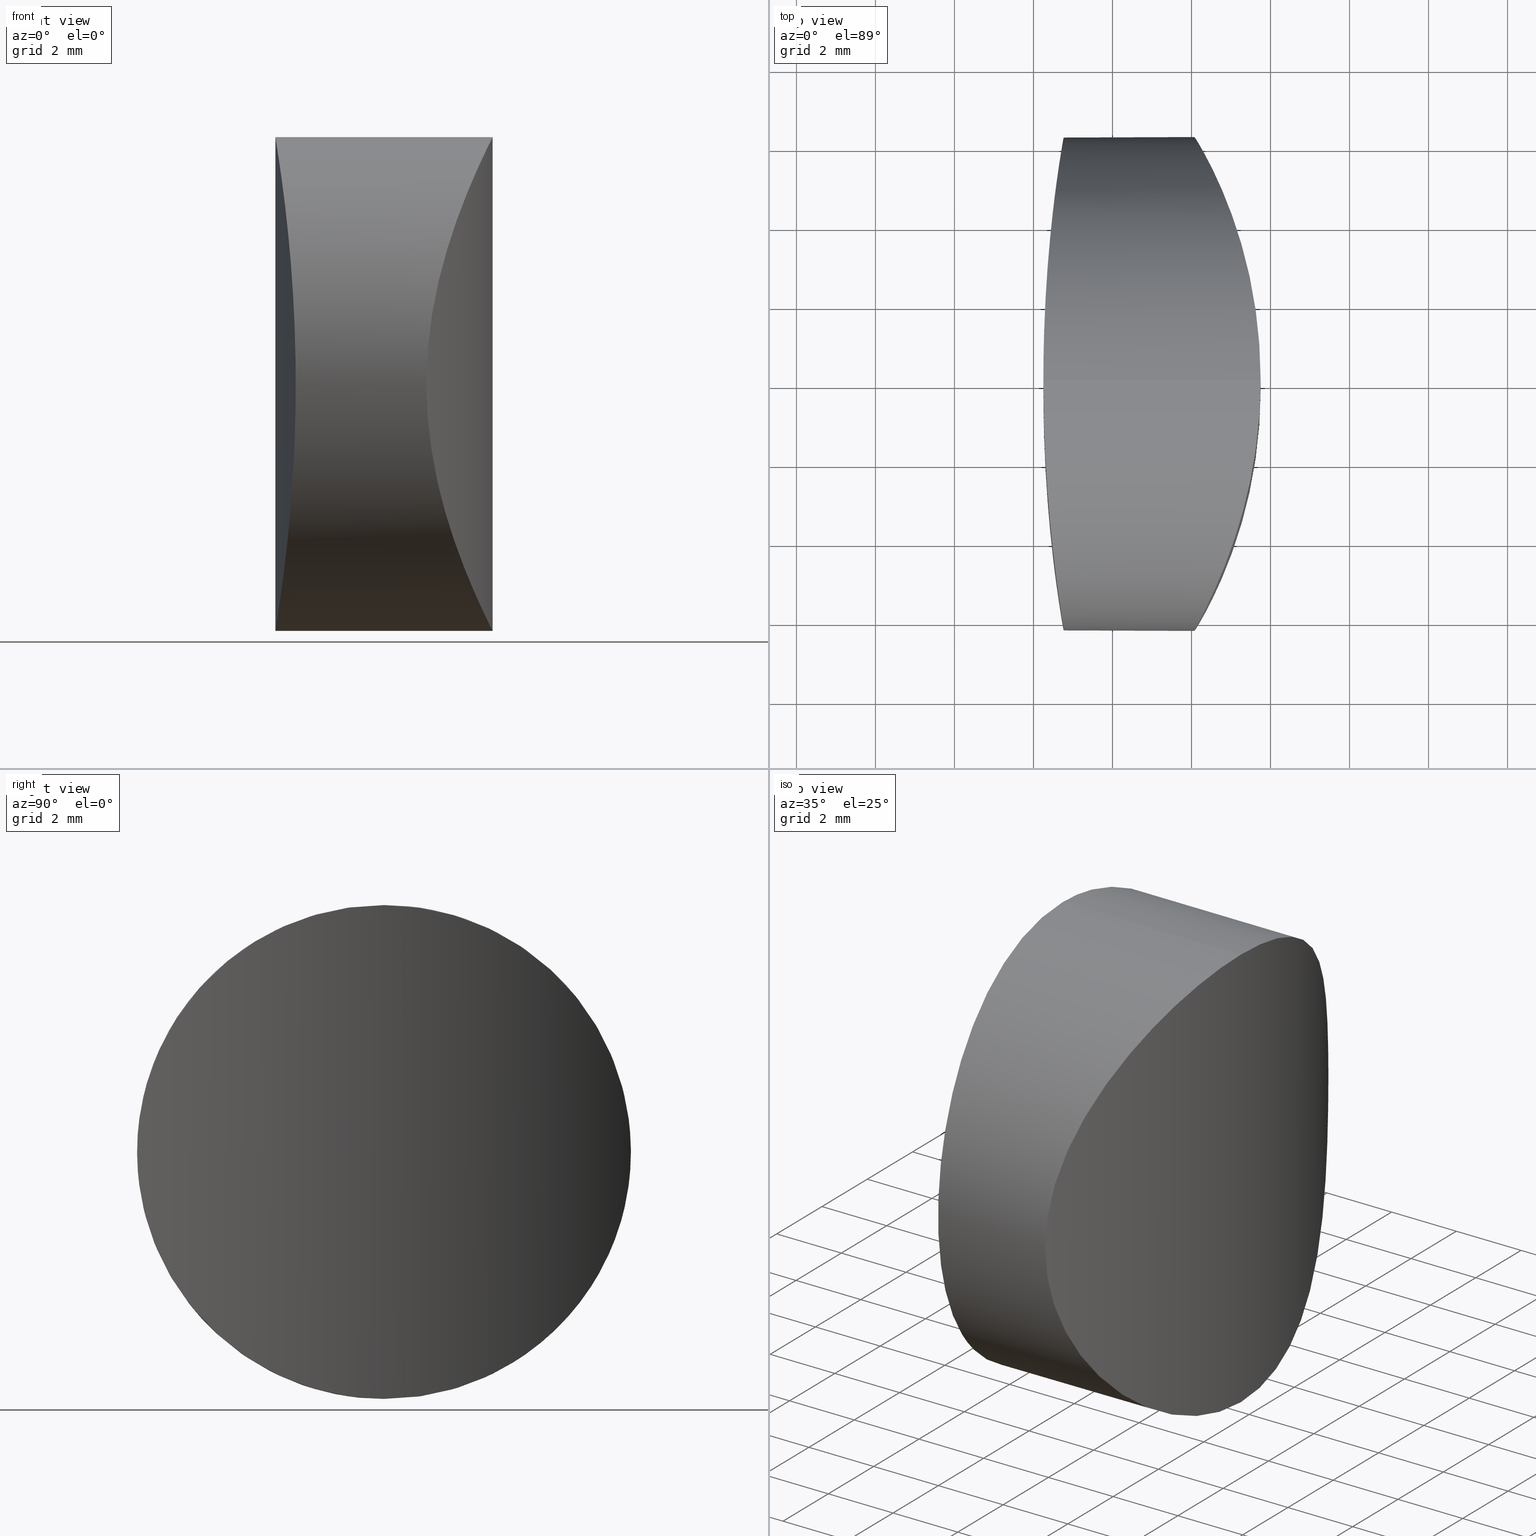
[diagram: canonical four-view strip — front | top / right | iso, engineering-drawing reading convention]
A machine part, canonical four-view strip (front | top / right | iso — engineering-drawing reading convention). The complete STEP part file that produces these views, byte-faithful:
ISO-10303-21;
HEADER;
FILE_DESCRIPTION (( 'STEP AP203' ),
    '1' );
FILE_NAME ('159002.STEP',
    '2024-12-10T00:58:28',
    ( '' ),
    ( '' ),
    'SwSTEP 2.0',
    'SolidWorks 2020',
    '' );
FILE_SCHEMA (( 'CONFIG_CONTROL_DESIGN' ));
ENDSEC;

DATA;
#1 = PRODUCT ( '159002', '159002', '', ( #203 ) ) ;
#2 = CARTESIAN_POINT ( 'NONE',  ( -1.621565708852395371, -3.130939934637392508, 0.8369232792497582896 ) ) ;
#3 = CARTESIAN_POINT ( 'NONE',  ( -1.286459522562452218, -5.927213797019759589, 8.273865896920996832 ) ) ;
#4 = APPROVAL_STATUS ( 'not_yet_approved' ) ;
#5 = CARTESIAN_POINT ( 'NONE',  ( 2.300235299533569311, -5.841329982157808409, 4.017846853050256684 ) ) ;
#6 = CARTESIAN_POINT ( 'NONE',  ( -6.250000000000000000, -4.846596132548555190E-16, -8.673617379884035472E-16 ) ) ;
#7 = CARTESIAN_POINT ( 'NONE',  ( -1.268149588925744808, 6.040567720672501473, 7.867454215538908890 ) ) ;
#8 = AXIS2_PLACEMENT_3D ( 'NONE', #328, #30, #9 ) ;
#9 = DIRECTION ( 'NONE',  ( 0.000000000000000000, 0.000000000000000000, -1.000000000000000000 ) ) ;
#10 = CARTESIAN_POINT ( 'NONE',  ( -1.363617983474595619, 5.413179074090411547, 3.119237713539467993 ) ) ;
#11 = CARTESIAN_POINT ( 'NONE',  ( -1.724080568679461356, 1.419281361369313821, 0.1598727062641647212 ) ) ;
#12 = CARTESIAN_POINT ( 'NONE',  ( -1.526557792428184124, 4.130406150187405423, 1.541745607037889876 ) ) ;
#13 = CARTESIAN_POINT ( 'NONE',  ( -1.749999999999991340, 0.4134255789196237818, -1.156482317317870147E-15 ) ) ;
#14 = CARTESIAN_POINT ( 'NONE',  ( -1.662534855218846586, 2.587004763341000935, 11.94308875892624577 ) ) ;
#15 = CC_DESIGN_PERSON_AND_ORGANIZATION_ASSIGNMENT ( #215, #179, ( #220 ) ) ;
#16 = SECURITY_CLASSIFICATION ( '', '', #289 ) ;
#17 = APPROVAL_STATUS ( 'not_yet_approved' ) ;
#18 = CALENDAR_DATE ( 2024, 10, 12 ) ;
#19 = CARTESIAN_POINT ( 'NONE',  ( 0.000000000000000000, 0.000000000000000000, 0.000000000000000000 ) ) ;
#20 = LOCAL_TIME ( 8, 58, 28.00000000000000000, #96 ) ;
#21 = CARTESIAN_POINT ( 'NONE',  ( 3.203423948601590077, 3.658625364287896975, 11.32131562577506578 ) ) ;
#22 = ORIENTED_EDGE ( 'NONE', *, *, #64, .F. ) ;
#23 = CARTESIAN_POINT ( 'NONE',  ( 3.549930854168795502, 2.234790816785135359, 0.4096533256334282114 ) ) ;
#24 = CARTESIAN_POINT ( 'NONE',  ( -1.459402016810353864, -4.705635259058762898, 10.38338845988655912 ) ) ;
#25 = CARTESIAN_POINT ( 'NONE',  ( -1.260122480537348544, -6.090181329704440039, 4.830950455695248280 ) ) ;
#26 = EDGE_LOOP ( 'NONE', ( #297, #317, #129, #294 ) ) ;
#27 = DATE_TIME_ROLE ( 'classification_date' ) ;
#28 = CARTESIAN_POINT ( 'NONE',  ( 3.750000000000008438, 0.4204308858565112827, 12.50000000000000533 ) ) ;
#29 = CARTESIAN_POINT ( 'NONE',  ( -1.526570675347540762, -4.130287875618672722, 10.95835697628565519 ) ) ;
#30 = DIRECTION ( 'NONE',  ( 1.000000000000000000, -0.000000000000000000, -0.000000000000000000 ) ) ;
#31 = CARTESIAN_POINT ( 'NONE',  ( -1.749999999999991340, 2.323866311876246401E-32, -1.167039368473968539E-15 ) ) ;
#32 = CARTESIAN_POINT ( 'NONE',  ( -1.686596743928480802, 2.205264468755676610, 0.3984021206274787064 ) ) ;
#33 = CARTESIAN_POINT ( 'NONE',  ( 2.726029905335566550, -4.954742388226764049, 2.435091165306358274 ) ) ;
#34 = CARTESIAN_POINT ( 'NONE',  ( -6.250000000000000000, 2.807446362122402417E-16, 12.50000000000000000 ) ) ;
#35 = CARTESIAN_POINT ( 'NONE',  ( -1.267033211991417163, 6.047769522081784643, 4.620059256061258779 ) ) ;
#36 = CARTESIAN_POINT ( 'NONE',  ( 3.203513515990861649, -3.658322438160689138, 11.32152390383200924 ) ) ;
#37 = CYLINDRICAL_SURFACE ( 'NONE', #327, 12.49000000000000554 ) ;
#38 = APPROVAL_PERSON_ORGANIZATION ( #147, #261, #231 ) ;
#39 = ADVANCED_FACE ( 'NONE', ( #152 ), #346, .T. ) ;
#40 =( NAMED_UNIT ( * ) SI_UNIT ( $, .STERADIAN. ) SOLID_ANGLE_UNIT ( ) );
#41 = CARTESIAN_POINT ( 'NONE',  ( -1.298043519511454136, 5.851590433140087200, 8.455283225414087056 ) ) ;
#42 = CARTESIAN_POINT ( 'NONE',  ( 3.438630579431069201, 2.797752453290867081, 0.6463549098473136967 ) ) ;
#43 = LOCAL_TIME ( 8, 58, 28.00000000000000000, #262 ) ;
#44 = CARTESIAN_POINT ( 'NONE',  ( -1.268137729938411784, -6.040641502459361156, 4.632820593986693325 ) ) ;
#45 = CARTESIAN_POINT ( 'NONE',  ( -1.686600990894568275, -2.205190765562237143, 12.10162541744946196 ) ) ;
#46 = CARTESIAN_POINT ( 'NONE',  ( 3.750000000000008438, 2.807446362122402417E-16, 12.50000000000000000 ) ) ;
#47 = VERTEX_POINT ( 'NONE', #79 ) ;
#48 = EDGE_CURVE ( 'NONE', #47, #104, #315, .T. ) ;
#49 = CARTESIAN_POINT ( 'NONE',  ( 2.189965554773740664, 6.045220159673066362, 4.610632309698153186 ) ) ;
#50 = CARTESIAN_POINT ( 'NONE',  ( 36.35000000000000142, 0.000000000000000000, 12.50000000000000000 ) ) ;
#51 = CARTESIAN_POINT ( 'NONE',  ( 2.300235299533570643, 5.841329982157804857, 8.482153146949743316 ) ) ;
#52 = CARTESIAN_POINT ( 'NONE',  ( 3.047504594718310589, -4.133005283357473303, 1.557304704053684929 ) ) ;
#53 = CARTESIAN_POINT ( 'NONE',  ( 3.750000000000008438, 2.807446362122402417E-16, 12.50000000000000000 ) ) ;
#54 = PERSON ( 'δָ��', 'δָ��', 'δָ��', ('δָ��'), ('δָ��'), ('δָ��') ) ;
#55 = CARTESIAN_POINT ( 'NONE',  ( 2.422729123313506872, -5.605792025897773811, 3.456763474040485562 ) ) ;
#56 = CARTESIAN_POINT ( 'NONE',  ( -1.622661098620020947, 3.130990395452586839, 0.8254408384174942714 ) ) ;
#57 = AXIS2_PLACEMENT_3D ( 'NONE', #308, #279, #144 ) ;
#58 = CARTESIAN_POINT ( 'NONE',  ( -1.335444871559374747, 5.605955219611369778, 3.479179497295801671 ) ) ;
#59 = CC_DESIGN_SECURITY_CLASSIFICATION ( #16, ( #220 ) ) ;
#60 = CARTESIAN_POINT ( 'NONE',  ( -1.716161415613427499, 1.617409952972932219, 0.2094201703944069681 ) ) ;
#61 = CARTESIAN_POINT ( 'NONE',  ( -1.287083665107535468, 5.921449997130795673, 8.260235423743910843 ) ) ;
#62 = CARTESIAN_POINT ( 'NONE',  ( -1.749999999999997780, 0.4134111995047491384, 12.50000000000000000 ) ) ;
#63 = APPROVAL_PERSON_ORGANIZATION ( #205, #74, #68 ) ;
#64 = EDGE_CURVE ( 'NONE', #240, #291, #255, .T. ) ;
#65 = APPLICATION_PROTOCOL_DEFINITION ( 'international standard', 'config_control_design', 1994, #250 ) ;
#66 = APPLICATION_PROTOCOL_DEFINITION ( 'international standard', 'config_control_design', 1994, #145 ) ;
#67 = DATE_AND_TIME ( #204, #20 ) ;
#68 = APPROVAL_ROLE ( '' ) ;
#69 = ADVANCED_BREP_SHAPE_REPRESENTATION ( '159002', ( #117, #98 ), #253 ) ;
#70 = CARTESIAN_POINT ( 'NONE',  ( 2.262820659232050780, 5.911247298030501973, 8.290173178237726148 ) ) ;
#71 = COORDINATED_UNIVERSAL_TIME_OFFSET ( 8, 0, .AHEAD. ) ;
#72 = CARTESIAN_POINT ( 'NONE',  ( -1.749999999999991340, 2.323866311876246401E-32, -1.167039368473968539E-15 ) ) ;
#73 = CARTESIAN_POINT ( 'NONE',  ( -1.749999999999997780, 0.000000000000000000, 12.50000000000000000 ) ) ;
#74 = APPROVAL ( #312, 'δָ��' ) ;
#75 = CARTESIAN_POINT ( 'NONE',  ( -1.698075541327791260, -2.023747739799695466, 0.3227435011837379575 ) ) ;
#76 = EDGE_LOOP ( 'NONE', ( #309, #94, #322, #184 ) ) ;
#77 = PERSON_AND_ORGANIZATION ( #54, #187 ) ;
#78 = CARTESIAN_POINT ( 'NONE',  ( 2.672545947120787080, 5.076343834273179922, 9.901598556827259756 ) ) ;
#79 = CARTESIAN_POINT ( 'NONE',  ( -1.749999999999997780, 0.000000000000000000, 12.50000000000000000 ) ) ;
#80 = CARTESIAN_POINT ( 'NONE',  ( 3.047469905077353935, 4.133108092026783531, 1.557390087364224796 ) ) ;
#81 = CARTESIAN_POINT ( 'NONE',  ( -1.233870054082204515, -6.250016940629664397, 5.836852875865175427 ) ) ;
#82 = DESIGN_CONTEXT ( 'detailed design', #145, 'design' ) ;
#83 = CARTESIAN_POINT ( 'NONE',  ( 3.648363331412227684, -1.641239386668563727, 0.2052509474003402501 ) ) ;
#84 = CARTESIAN_POINT ( 'NONE',  ( 3.047469905077353491, -4.133108092026786196, 10.94260991263577054 ) ) ;
#85 = CARTESIAN_POINT ( 'NONE',  ( 2.994262744214213789, -4.281363646961201752, 1.692309858094710906 ) ) ;
#86 = CARTESIAN_POINT ( 'NONE',  ( 2.422178724081522461, -5.606908644890314264, 9.041307703863516565 ) ) ;
#87 = CARTESIAN_POINT ( 'NONE',  ( 2.073735072082860675, -6.250058703357280976, 6.669772609302331290 ) ) ;
#88 = CARTESIAN_POINT ( 'NONE',  ( 3.728819348541668077, -0.8339676614958790868, 12.45797750707659723 ) ) ;
#89 = CLOSED_SHELL ( 'NONE', ( #163, #39, #330, #202, #238 ) ) ;
#90 = CARTESIAN_POINT ( 'NONE',  ( -1.743277588676094947, 0.8198081996233547164, 0.04061559714843696045 ) ) ;
#91 = CARTESIAN_POINT ( 'NONE',  ( -1.240692488842338737, 6.209374154871084350, 7.069879503054278480 ) ) ;
#92 = CARTESIAN_POINT ( 'NONE',  ( -1.698079021959797652, 2.023680260765043037, 12.17727857051070650 ) ) ;
#93 = DIRECTION ( 'NONE',  ( 1.000000000000000000, 0.000000000000000000, 0.000000000000000000 ) ) ;
#94 = ORIENTED_EDGE ( 'NONE', *, *, #229, .T. ) ;
#95 = LOCAL_TIME ( 8, 58, 28.00000000000000000, #71 ) ;
#96 = COORDINATED_UNIVERSAL_TIME_OFFSET ( 8, 0, .AHEAD. ) ;
#97 = APPROVAL_DATE_TIME ( #67, #261 ) ;
#98 = AXIS2_PLACEMENT_3D ( 'NONE', #19, #120, #93 ) ;
#99 = CARTESIAN_POINT ( 'NONE',  ( 3.587968765651573300, 2.041851301300702470, 12.17121152634462433 ) ) ;
#100 = CARTESIAN_POINT ( 'NONE',  ( 2.258200150961225727, 5.922098602681352908, 4.210987643511410639 ) ) ;
#101 = CARTESIAN_POINT ( 'NONE',  ( -1.724082338061241559, -1.419232947397064848, 12.34013833801059157 ) ) ;
#102 = EDGE_CURVE ( 'NONE', #104, #291, #272, .T. ) ;
#103 = CARTESIAN_POINT ( 'NONE',  ( -1.298028973939799213, -5.851683952539731060, 4.044964187310434944 ) ) ;
#104 = VERTEX_POINT ( 'NONE', #31 ) ;
#105 = CARTESIAN_POINT ( 'NONE',  ( 3.350579253738436236, 3.152975419826741454, 11.66168854718472758 ) ) ;
#106 = CARTESIAN_POINT ( 'NONE',  ( -1.749999999999997780, -0.4134111996259762223, 12.50000000000000533 ) ) ;
#107 = CARTESIAN_POINT ( 'NONE',  ( 2.073735072082862452, 6.250058703357280088, 5.830227390697666934 ) ) ;
#108 = CARTESIAN_POINT ( 'NONE',  ( -1.267045465641554181, -6.047693536380916335, 7.880219443698434745 ) ) ;
#109 = COORDINATED_UNIVERSAL_TIME_OFFSET ( 8, 0, .AHEAD. ) ;
#110 = CARTESIAN_POINT ( 'NONE',  ( 3.750000000000008438, -4.846596132548555190E-16, -8.673617379884035472E-16 ) ) ;
#111 = CARTESIAN_POINT ( 'NONE',  ( 3.151961221584490769, -3.822074769951103512, 1.300771144333627394 ) ) ;
#112 = CARTESIAN_POINT ( 'NONE',  ( 3.549930854168792838, -2.234790816785138023, 12.09034667436657173 ) ) ;
#113 = CARTESIAN_POINT ( 'NONE',  ( 2.098424530652461151, -6.207861446666270488, 5.415498172633210316 ) ) ;
#114 = DIRECTION ( 'NONE',  ( -0.000000000000000000, -0.000000000000000000, -1.000000000000000000 ) ) ;
#115 = CC_DESIGN_PERSON_AND_ORGANIZATION_ASSIGNMENT ( #77, #209, ( #220 ) ) ;
#116 = CARTESIAN_POINT ( 'NONE',  ( 2.994212298873327516, -4.281501630418612869, 10.80756029290236597 ) ) ;
#117 = MANIFOLD_SOLID_BREP ( '�г�-����2', #89 ) ;
#118 = CARTESIAN_POINT ( 'NONE',  ( -1.233871893404784981, 6.250005880011089587, 5.836670242367632433 ) ) ;
#119 = CARTESIAN_POINT ( 'NONE',  ( -1.697440521016758019, 2.010206376271954642, 0.3285398795052739129 ) ) ;
#120 = DIRECTION ( 'NONE',  ( 0.000000000000000000, 0.000000000000000000, 1.000000000000000000 ) ) ;
#121 = DATE_AND_TIME ( #18, #195 ) ;
#122 = CARTESIAN_POINT ( 'NONE',  ( 2.833465705276874580, 4.706014185487399359, 2.117642485836709110 ) ) ;
#123 = CARTESIAN_POINT ( 'NONE',  ( 2.167788844864484865, 6.084608863991478600, 7.693223555952887871 ) ) ;
#124 = EDGE_LOOP ( 'NONE', ( #201, #181 ) ) ;
#125 = CC_DESIGN_PERSON_AND_ORGANIZATION_ASSIGNMENT ( #172, #148, ( #190 ) ) ;
#126 = CARTESIAN_POINT ( 'NONE',  ( 3.642645114789305971, 1.646284723063277111, 0.2171595785548920965 ) ) ;
#127 = CARTESIAN_POINT ( 'NONE',  ( -1.378779537468205030, -5.306834674025096454, 9.557891344505101472 ) ) ;
#128 = CARTESIAN_POINT ( 'NONE',  ( 2.196516896790648321, 6.033034497158884513, 7.895492622822825268 ) ) ;
#129 = ORIENTED_EDGE ( 'NONE', *, *, #102, .T. ) ;
#130 = DATE_AND_TIME ( #265, #43 ) ;
#131 = VECTOR ( 'NONE', #194, 1000.000000000000000 ) ;
#132 = CARTESIAN_POINT ( 'NONE',  ( 2.887096022221826708, 4.564387682680777658, 10.52422264152600917 ) ) ;
#133 = CARTESIAN_POINT ( 'NONE',  ( -1.363634406776115027, -5.413064718625538951, 9.380959584004830987 ) ) ;
#134 = CARTESIAN_POINT ( 'NONE',  ( 2.672545947120785748, -5.076343834273185252, 2.598401443172738912 ) ) ;
#135 = CYLINDRICAL_SURFACE ( 'NONE', #8, 6.250000000000000000 ) ;
#136 = CARTESIAN_POINT ( 'NONE',  ( -1.459386864570966669, 4.705757122277624660, 2.116748942964345570 ) ) ;
#137 = CARTESIAN_POINT ( 'NONE',  ( 2.196516896790650097, -6.033034497158887177, 4.604507377177172955 ) ) ;
#138 = CC_DESIGN_APPROVAL ( #249, ( #16 ) ) ;
#139 = CARTESIAN_POINT ( 'NONE',  ( -6.250000000000000000, -4.846596132548555190E-16, 6.249999999999999112 ) ) ;
#140 = CC_DESIGN_DATE_AND_TIME_ASSIGNMENT ( #121, #232, ( #190 ) ) ;
#141 = CYLINDRICAL_SURFACE ( 'NONE', #173, 6.250000000000000000 ) ;
#142 = CARTESIAN_POINT ( 'NONE',  ( 2.098281652511878814, -6.208098310133498998, 7.081702215123210742 ) ) ;
#143 = CARTESIAN_POINT ( 'NONE',  ( 3.667967346490924818, -1.443662297825262453, 12.33451607500837888 ) ) ;
#144 = DIRECTION ( 'NONE',  ( -1.000000000000000000, 0.000000000000000000, 0.000000000000000000 ) ) ;
#145 = APPLICATION_CONTEXT ( 'configuration controlled 3d designs of mechanical parts and assemblies' ) ;
#146 = CC_DESIGN_DATE_AND_TIME_ASSIGNMENT ( #292, #27, ( #16 ) ) ;
#147 = PERSON_AND_ORGANIZATION ( #54, #187 ) ;
#148 = PERSON_AND_ORGANIZATION_ROLE ( 'creator' ) ;
#149 =( NAMED_UNIT ( * ) PLANE_ANGLE_UNIT ( ) SI_UNIT ( $, .RADIAN. ) );
#150 = CARTESIAN_POINT ( 'NONE',  ( 3.583543247772077223, 2.042164353938780152, 0.3394178212704527242 ) ) ;
#151 = CARTESIAN_POINT ( 'NONE',  ( 2.422178724081523349, 5.606908644890313376, 3.458692296136482103 ) ) ;
#152 = FACE_OUTER_BOUND ( 'NONE', #178, .T. ) ;
#153 = CARTESIAN_POINT ( 'NONE',  ( 3.151961221584492545, 3.822074769951103068, 11.19922885566637305 ) ) ;
#154 = CARTESIAN_POINT ( 'NONE',  ( -1.716163719354671935, -1.617354943771918130, 12.29059430706059786 ) ) ;
#155 = CARTESIAN_POINT ( 'NONE',  ( 2.994262744214214234, 4.281363646961199976, 10.80769014190528665 ) ) ;
#156 = DIRECTION ( 'NONE',  ( -0.000000000000000000, -0.000000000000000000, -1.000000000000000000 ) ) ;
#157 = PERSON_AND_ORGANIZATION_ROLE ( 'classification_officer' ) ;
#158 = VECTOR ( 'NONE', #248, 1000.000000000000000 ) ;
#159 = CARTESIAN_POINT ( 'NONE',  ( 2.833167940201284374, 4.699052856867830918, 10.37576099635895943 ) ) ;
#160 = CARTESIAN_POINT ( 'NONE',  ( 3.439010716184527805, -2.796367035738796858, 0.6455166091982033061 ) ) ;
#161 = CARTESIAN_POINT ( 'NONE',  ( 3.750000000000009770, -0.4202502510817937575, 12.50000000000000533 ) ) ;
#162 = CARTESIAN_POINT ( 'NONE',  ( 2.262820659232052556, -5.911247298030501973, 4.209826821762275628 ) ) ;
#163 = ADVANCED_FACE ( 'NONE', ( #221 ), #135, .T. ) ;
#164 = CARTESIAN_POINT ( 'NONE',  ( 3.642645114789304639, -1.646284723063275779, 12.28284042144510835 ) ) ;
#165 = CARTESIAN_POINT ( 'NONE',  ( 3.438630579431067424, -2.797752453290871966, 11.85364509015268730 ) ) ;
#166 = CARTESIAN_POINT ( 'NONE',  ( -1.650883931168233287, 2.772427347907982842, 0.6336218898025697266 ) ) ;
#167 = CARTESIAN_POINT ( 'NONE',  ( -1.378762946851489923, 5.306952595992878052, 2.942297336550427467 ) ) ;
#168 = CARTESIAN_POINT ( 'NONE',  ( -1.749999999999997780, 0.000000000000000000, 12.50000000000000000 ) ) ;
#169 =( LENGTH_UNIT ( ) NAMED_UNIT ( * ) SI_UNIT ( .MILLI., .METRE. ) );
#170 = EDGE_CURVE ( 'NONE', #291, #240, #281, .T. ) ;
#171 = CARTESIAN_POINT ( 'NONE',  ( -1.559616786124128129, 3.819462818899282741, 11.21414949393338567 ) ) ;
#172 = PERSON_AND_ORGANIZATION ( #54, #187 ) ;
#173 = AXIS2_PLACEMENT_3D ( 'NONE', #139, #196, #332 ) ;
#174 = CARTESIAN_POINT ( 'NONE',  ( -1.606526598336181388, 3.307782318069389049, 11.55690307449042464 ) ) ;
#175 = CARTESIAN_POINT ( 'NONE',  ( 2.994212298873327072, 4.281501630418612869, 1.692439707097626256 ) ) ;
#176 = APPROVAL_DATE_TIME ( #298, #249 ) ;
#177 = CARTESIAN_POINT ( 'NONE',  ( -1.649529281238026446, -2.770985683892318363, 0.6441260450578081276 ) ) ;
#178 = EDGE_LOOP ( 'NONE', ( #186, #235 ) ) ;
#179 = PERSON_AND_ORGANIZATION_ROLE ( 'design_supplier' ) ;
#180 = CARTESIAN_POINT ( 'NONE',  ( -1.743273950505977998, -0.8221003098062016345, 0.04062136647609398271 ) ) ;
#181 = ORIENTED_EDGE ( 'NONE', *, *, #303, .F. ) ;
#182 = CALENDAR_DATE ( 2024, 10, 12 ) ;
#183 = CARTESIAN_POINT ( 'NONE',  ( 2.518015616409067015, 5.414671851212657039, 9.397631445965435759 ) ) ;
#184 = ORIENTED_EDGE ( 'NONE', *, *, #102, .F. ) ;
#185 = CARTESIAN_POINT ( 'NONE',  ( -1.459052608794357386, -4.708430838582900790, 2.119794543840803236 ) ) ;
#186 = ORIENTED_EDGE ( 'NONE', *, *, #48, .F. ) ;
#187 = ORGANIZATION ( 'δָ��', 'δָ��', '' ) ;
#188 = CARTESIAN_POINT ( 'NONE',  ( 3.587968765651572856, -2.041851301300701582, 0.3287884736553769449 ) ) ;
#189 = DIRECTION ( 'NONE',  ( -1.000000000000000000, 0.000000000000000000, 0.000000000000000000 ) ) ;
#190 = PRODUCT_DEFINITION ( 'δ֪', '', #220, #82 ) ;
#191 = CARTESIAN_POINT ( 'NONE',  ( 2.887096022221825375, -4.564387682680775882, 1.975777358473989720 ) ) ;
#192 = CARTESIAN_POINT ( 'NONE',  ( -1.749999999999994671, 0.000000000000000000, 12.50000000000000000 ) ) ;
#193 = PRODUCT_DEFINITION_SHAPE ( 'NONE', 'NONE',  #190 ) ;
#194 = DIRECTION ( 'NONE',  ( 1.000000000000000000, -0.000000000000000000, -0.000000000000000000 ) ) ;
#195 = LOCAL_TIME ( 8, 58, 28.00000000000000000, #257 ) ;
#196 = DIRECTION ( 'NONE',  ( 1.000000000000000000, -0.000000000000000000, -0.000000000000000000 ) ) ;
#197 = CARTESIAN_POINT ( 'NONE',  ( 3.151988962150173990, -3.821992646196491705, 11.19929717282815673 ) ) ;
#198 = CARTESIAN_POINT ( 'NONE',  ( -1.424939241590322592, 4.971543794433696206, 10.05955149783006952 ) ) ;
#199 = B_SPLINE_CURVE_WITH_KNOTS ( 'NONE', 3,
 ( #225, #13, #90, #11, #60, #119, #32, #166, #56, #304, #12, #136, #245, #167, #10, #58, #277, #275, #35, #226, #118, #334, #91, #306, #7, #61, #41, #228, #335, #198, #230, #307, #171, #174, #282, #200, #14, #92, #336, #227, #62, #168 ),
 .UNSPECIFIED., .F., .F.,
 ( 4, 2, 2, 2, 2, 2, 2, 2, 2, 2, 2, 2, 2, 2, 2, 2, 2, 2, 2, 2, 4 ),
 ( 0.009780015612640231490, 0.01100254913169195284, 0.01161381589121781438, 0.01222508265074367592, 0.01344761616979539900, 0.01467014968884712209, 0.01589268320789884517, 0.01650394996742470671, 0.01711521672695057172, 0.01833775024600229481, 0.01956028376505401789, 0.02078281728410574444, 0.02139408404363160598, 0.02200535080315746406, 0.02322788432220918714, 0.02445041784126090328, 0.02567295136031262637, 0.02628421811983849138, 0.02689548487936434945, 0.02811801839841607253, 0.02934055191746779562 ),
 .UNSPECIFIED. ) ;
#200 = CARTESIAN_POINT ( 'NONE',  ( -1.649535748045721784, 2.770896678793056456, 11.85591767928525897 ) ) ;
#201 = ORIENTED_EDGE ( 'NONE', *, *, #285, .F. ) ;
#202 = ADVANCED_FACE ( 'NONE', ( #251 ), #37, .T. ) ;
#203 = MECHANICAL_CONTEXT ( 'NONE', #250, 'mechanical' ) ;
#204 = CALENDAR_DATE ( 2024, 10, 12 ) ;
#205 = PERSON_AND_ORGANIZATION ( #54, #187 ) ;
#206 = CARTESIAN_POINT ( 'NONE',  ( 3.350480944358878332, 3.153303538659014471, 0.8385410592116612216 ) ) ;
#207 = CARTESIAN_POINT ( 'NONE',  ( 3.439010716184527361, 2.796367035738797746, 11.85448339080179636 ) ) ;
#208 = CARTESIAN_POINT ( 'NONE',  ( -1.650890342508009034, -2.772338036541217576, 11.86642120623027097 ) ) ;
#209 = PERSON_AND_ORGANIZATION_ROLE ( 'creator' ) ;
#210 = CARTESIAN_POINT ( 'NONE',  ( 3.750000000000007994, 0.4206115982728728109, -9.198777807181701682E-16 ) ) ;
#211 = DIRECTION ( 'NONE',  ( -1.000000000000000000, 0.000000000000000000, 0.000000000000000000 ) ) ;
#212 = APPROVAL_PERSON_ORGANIZATION ( #268, #249, #241 ) ;
#213 = CARTESIAN_POINT ( 'NONE',  ( -1.606517573012688160, -3.307886042671826843, 0.9431613263702570693 ) ) ;
#214 = CARTESIAN_POINT ( 'NONE',  ( -1.322347455880843015, -5.693019792750916963, 8.837155731768309153 ) ) ;
#215 = PERSON_AND_ORGANIZATION ( #54, #187 ) ;
#216 = CARTESIAN_POINT ( 'NONE',  ( 2.517814276648401073, 5.415114148527836235, 3.103021501019148864 ) ) ;
#217 = CARTESIAN_POINT ( 'NONE',  ( -1.240699487290325642, -6.209349300076309142, 7.072310047511150444 ) ) ;
#218 = CALENDAR_DATE ( 2024, 10, 12 ) ;
#219 = DIRECTION ( 'NONE',  ( 1.000000000000000000, -0.000000000000000000, -0.000000000000000000 ) ) ;
#220 = PRODUCT_DEFINITION_FORMATION_WITH_SPECIFIED_SOURCE ( '�κ�', '', #1, .NOT_KNOWN. ) ;
#221 = FACE_OUTER_BOUND ( 'NONE', #76, .T. ) ;
#222 = CARTESIAN_POINT ( 'NONE',  ( 2.724283165928846895, -4.963069113008134359, 10.07032457968413652 ) ) ;
#223 = CARTESIAN_POINT ( 'NONE',  ( 2.833167940201284374, -4.699052856867835359, 2.124239003641039680 ) ) ;
#224 = CARTESIAN_POINT ( 'NONE',  ( 2.833465705276875912, -4.706014185487399359, 10.38235751416329045 ) ) ;
#225 = CARTESIAN_POINT ( 'NONE',  ( -1.749999999999991340, 2.323866311876246401E-32, -1.167039368473968539E-15 ) ) ;
#226 = CARTESIAN_POINT ( 'NONE',  ( -1.240692499482147548, 6.209391377072576823, 5.428001370250751023 ) ) ;
#227 = CARTESIAN_POINT ( 'NONE',  ( -1.743274418271353099, 0.8220718780741922416, 12.45938143169216872 ) ) ;
#228 = CARTESIAN_POINT ( 'NONE',  ( -1.334100315479646248, 5.616382215434507330, 9.022415844744168467 ) ) ;
#229 = EDGE_CURVE ( 'NONE', #47, #240, #273, .T. ) ;
#230 = CARTESIAN_POINT ( 'NONE',  ( -1.459067853135032289, 4.708308257056168955, 10.38034374599079079 ) ) ;
#231 = APPROVAL_ROLE ( '' ) ;
#232 = DATE_TIME_ROLE ( 'creation_date' ) ;
#233 = CARTESIAN_POINT ( 'NONE',  ( -1.662529177513216494, -2.587088586990915928, 0.5569490804721093369 ) ) ;
#234 = CARTESIAN_POINT ( 'NONE',  ( -1.526224871796820981, -4.133445245479577146, 1.544413057393588806 ) ) ;
#235 = ORIENTED_EDGE ( 'NONE', *, *, #285, .T. ) ;
#236 = CARTESIAN_POINT ( 'NONE',  ( 3.667967346490923930, 1.443662297825261565, 0.1654839249916213451 ) ) ;
#237 = CARTESIAN_POINT ( 'NONE',  ( -1.425931529498716710, -4.964090617211167178, 10.06953687795566132 ) ) ;
#238 = ADVANCED_FACE ( 'NONE', ( #254 ), #141, .T. ) ;
#239 = CARTESIAN_POINT ( 'NONE',  ( -1.424923094559794379, -4.971666286081011243, 2.440606964671157009 ) ) ;
#240 = VERTEX_POINT ( 'NONE', #53 ) ;
#241 = APPROVAL_ROLE ( '' ) ;
#242 = CARTESIAN_POINT ( 'NONE',  ( 2.098424530652463371, 6.207861446666270488, 7.084501827366787019 ) ) ;
#243 = CARTESIAN_POINT ( 'NONE',  ( 3.728843911536274813, -0.8325528602893795815, 0.04197989951058075930 ) ) ;
#244 = CARTESIAN_POINT ( 'NONE',  ( 3.203423948601590521, -3.658625364287897863, 1.178684374224932885 ) ) ;
#245 = CARTESIAN_POINT ( 'NONE',  ( -1.425915509985619334, 4.964212405381893234, 2.430619650011252020 ) ) ;
#246 = CC_DESIGN_APPROVAL ( #74, ( #220 ) ) ;
#247 = CARTESIAN_POINT ( 'NONE',  ( 2.167788844864484865, -6.084608863991478600, 4.806776444047105024 ) ) ;
#248 = DIRECTION ( 'NONE',  ( -0.000000000000000000, -0.000000000000000000, -1.000000000000000000 ) ) ;
#249 = APPROVAL ( #4, 'δָ��' ) ;
#250 = APPLICATION_CONTEXT ( 'configuration controlled 3d designs of mechanical parts and assemblies' ) ;
#251 = FACE_OUTER_BOUND ( 'NONE', #319, .T. ) ;
#252 = CARTESIAN_POINT ( 'NONE',  ( 2.258200150961225283, -5.922098602681351132, 8.289012356488591138 ) ) ;
#253 =( GEOMETRIC_REPRESENTATION_CONTEXT ( 3 ) GLOBAL_UNCERTAINTY_ASSIGNED_CONTEXT ( ( #270 ) ) GLOBAL_UNIT_ASSIGNED_CONTEXT ( ( #169, #149, #40 ) ) REPRESENTATION_CONTEXT ( 'NONE', 'WORKASPACE' ) );
#254 = FACE_OUTER_BOUND ( 'NONE', #26, .T. ) ;
#255 = B_SPLINE_CURVE_WITH_KNOTS ( 'NONE', 3,
 ( #46, #28, #323, #293, #99, #207, #105, #21, #153, #316, #155, #132, #159, #318, #78, #183, #286, #51, #70, #128, #123, #242, #296, #107, #269, #49, #100, #151, #216, #259, #122, #175, #80, #340, #263, #206, #42, #23, #150, #126, #236, #343, #210, #290 ),
 .UNSPECIFIED., .F., .F.,
 ( 4, 2, 2, 2, 2, 2, 2, 2, 2, 2, 2, 2, 2, 2, 2, 2, 2, 2, 2, 2, 2, 4 ),
 ( -0.01988116416464387817, -0.01863859140435363687, -0.01739601864406339904, -0.01615344588377316121, -0.01553215950362803882, -0.01491087312348291991, -0.01428958674333779925, -0.01366830036319267860, -0.01242572760290244251, -0.01180444122275732186, -0.01118315484261220120, -0.009940582082321956434, -0.008698009322031711663, -0.007455436561741470361, -0.006212863801451225590, -0.004970291041160980819, -0.004349004661015860168, -0.003727718280870734313, -0.002485145520580493012, -0.001863859140435367157, -0.001242572760290248240, 0.000000000000000000 ),
 .UNSPECIFIED. ) ;
#256 = CYLINDRICAL_SURFACE ( 'NONE', #57, 38.09999999999999432 ) ;
#257 = COORDINATED_UNIVERSAL_TIME_OFFSET ( 8, 0, .AHEAD. ) ;
#258 = CARTESIAN_POINT ( 'NONE',  ( -1.334084258924177480, -5.616489684704366603, 3.477799487009014534 ) ) ;
#259 = CARTESIAN_POINT ( 'NONE',  ( 2.724283165928848227, 4.963069113008133471, 2.429675420315865697 ) ) ;
#260 = CARTESIAN_POINT ( 'NONE',  ( -1.622669147084165875, -3.130891926397181724, 11.67461487677046250 ) ) ;
#261 = APPROVAL ( #17, 'δָ��' ) ;
#262 = COORDINATED_UNIVERSAL_TIME_OFFSET ( 8, 0, .AHEAD. ) ;
#263 = CARTESIAN_POINT ( 'NONE',  ( 3.203513515990858984, 3.658322438160686918, 1.178476096167994092 ) ) ;
#264 = CARTESIAN_POINT ( 'NONE',  ( -1.697444077339251178, -2.010138429213203182, 12.17148293014821547 ) ) ;
#265 = CALENDAR_DATE ( 2024, 10, 12 ) ;
#266 = CARTESIAN_POINT ( 'NONE',  ( -1.362531538549025090, -5.424688508477381710, 3.119234032419559988 ) ) ;
#267 = CARTESIAN_POINT ( 'NONE',  ( -1.560603827104097840, -3.809488662938488979, 11.22159199281292352 ) ) ;
#268 = PERSON_AND_ORGANIZATION ( #54, #187 ) ;
#269 = CARTESIAN_POINT ( 'NONE',  ( 2.098281652511882367, 6.208098310133498110, 5.418297784876789258 ) ) ;
#270 = UNCERTAINTY_MEASURE_WITH_UNIT (LENGTH_MEASURE( 1.000000000000000082E-05 ), #169, 'distance_accuracy_value', 'NONE');
#271 = CARTESIAN_POINT ( 'NONE',  ( 3.750000000000008438, -4.846596132548555190E-16, -8.673617379884035472E-16 ) ) ;
#272 = LINE ( 'NONE', #6, #320 ) ;
#273 = LINE ( 'NONE', #34, #131 ) ;
#274 = CC_DESIGN_APPROVAL ( #261, ( #190 ) ) ;
#275 = CARTESIAN_POINT ( 'NONE',  ( -1.286445632901645819, 5.927301729704577582, 4.226388773391784426 ) ) ;
#276 = CC_DESIGN_PERSON_AND_ORGANIZATION_ASSIGNMENT ( #310, #339, ( #1 ) ) ;
#277 = CARTESIAN_POINT ( 'NONE',  ( -1.322331932999946558, 5.693122442755152335, 3.663069598993624609 ) ) ;
#278 = CARTESIAN_POINT ( 'NONE',  ( 3.350480944358880997, -3.153303538659015359, 11.66145894078834289 ) ) ;
#279 = DIRECTION ( 'NONE',  ( -0.000000000000000000, -0.000000000000000000, -1.000000000000000000 ) ) ;
#280 = FACE_OUTER_BOUND ( 'NONE', #124, .T. ) ;
#281 = B_SPLINE_CURVE_WITH_KNOTS ( 'NONE', 3,
 ( #110, #325, #243, #83, #188, #160, #299, #244, #111, #52, #85, #191, #223, #33, #134, #301, #55, #5, #162, #137, #247, #113, #331, #87, #142, #326, #252, #86, #305, #222, #224, #116, #84, #197, #36, #278, #165, #112, #300, #164, #143, #88, #161, #333 ),
 .UNSPECIFIED., .F., .F.,
 ( 4, 2, 2, 2, 2, 2, 2, 2, 2, 2, 2, 2, 2, 2, 2, 2, 2, 2, 2, 2, 2, 4 ),
 ( 0.000000000000000000, 0.001242038898820561378, 0.002484077797641122756, 0.003726116696461684568, 0.004347136145871965257, 0.004968155595282245512, 0.005589175044692526635, 0.006210194494102806891, 0.007452233392923369136, 0.008073252842333650259, 0.008694272291743930514, 0.009936311190564487555, 0.01117835008938504633, 0.01242038898820560511, 0.01366242788702616388, 0.01490446678584672266, 0.01552548623525700638, 0.01614650568466728664, 0.01738854458348785062, 0.01800956403289813088, 0.01863058348230841460, 0.01987262238112897858 ),
 .UNSPECIFIED. ) ;
#282 = CARTESIAN_POINT ( 'NONE',  ( -1.621573831065422855, 3.130841143127297332, 11.66313358120513399 ) ) ;
#283 = CARTESIAN_POINT ( 'NONE',  ( -1.717259833785022449, -1.630060715058897935, 0.2022620758610631231 ) ) ;
#284 = SHAPE_DEFINITION_REPRESENTATION ( #193, #69 ) ;
#285 = EDGE_CURVE ( 'NONE', #47, #104, #329, .T. ) ;
#286 = CARTESIAN_POINT ( 'NONE',  ( 2.422729123313508204, 5.605792025897770259, 9.043236525959514438 ) ) ;
#287 = ORIENTED_EDGE ( 'NONE', *, *, #170, .F. ) ;
#288 = LOCAL_TIME ( 8, 58, 28.00000000000000000, #109 ) ;
#289 = SECURITY_CLASSIFICATION_LEVEL ( 'unclassified' ) ;
#290 = CARTESIAN_POINT ( 'NONE',  ( 3.750000000000008438, -4.846596132548555190E-16, -8.673617379884035472E-16 ) ) ;
#291 = VERTEX_POINT ( 'NONE', #271 ) ;
#292 = DATE_AND_TIME ( #182, #95 ) ;
#293 = CARTESIAN_POINT ( 'NONE',  ( 3.648363331412227684, 1.641239386668561062, 12.29474905259965922 ) ) ;
#294 = ORIENTED_EDGE ( 'NONE', *, *, #170, .T. ) ;
#295 = PERSON_AND_ORGANIZATION ( #54, #187 ) ;
#296 = CARTESIAN_POINT ( 'NONE',  ( 2.073802999769051691, 6.249941174666597377, 6.671518863326054927 ) ) ;
#297 = ORIENTED_EDGE ( 'NONE', *, *, #229, .F. ) ;
#298 = DATE_AND_TIME ( #218, #288 ) ;
#299 = CARTESIAN_POINT ( 'NONE',  ( 3.350579253738436236, -3.152975419826741899, 0.8383114528152738609 ) ) ;
#300 = CARTESIAN_POINT ( 'NONE',  ( 3.583543247772077223, -2.042164353938780597, 12.16058217872954650 ) ) ;
#301 = CARTESIAN_POINT ( 'NONE',  ( 2.518015616409065682, -5.414671851212657039, 3.102368554034564685 ) ) ;
#302 = CARTESIAN_POINT ( 'NONE',  ( -8.740000000000000213, 0.000000000000000000, 12.50000000000000000 ) ) ;
#303 = EDGE_CURVE ( 'NONE', #104, #47, #199, .T. ) ;
#304 = CARTESIAN_POINT ( 'NONE',  ( -1.560592446546780199, 3.809602619551917702, 1.278494107915769895 ) ) ;
#305 = CARTESIAN_POINT ( 'NONE',  ( 2.517814276648400185, -5.415114148527833571, 9.396978498980852024 ) ) ;
#306 = CARTESIAN_POINT ( 'NONE',  ( -1.260133216711539328, 6.090115082466271978, 7.669332847148345067 ) ) ;
#307 = CARTESIAN_POINT ( 'NONE',  ( -1.526237663606630601, 4.133327838003985732, 10.95568880049348692 ) ) ;
#308 = CARTESIAN_POINT ( 'NONE',  ( 36.35000000000000142, 0.000000000000000000, 12.50000000000000000 ) ) ;
#309 = ORIENTED_EDGE ( 'NONE', *, *, #303, .T. ) ;
#310 = PERSON_AND_ORGANIZATION ( #54, #187 ) ;
#311 = AXIS2_PLACEMENT_3D ( 'NONE', #50, #156, #211 ) ;
#312 = APPROVAL_STATUS ( 'not_yet_approved' ) ;
#313 = CARTESIAN_POINT ( 'NONE',  ( -1.287069841359362199, -5.921537788994331919, 4.240022585703973945 ) ) ;
#314 = APPROVAL_DATE_TIME ( #130, #74 ) ;
#315 = B_SPLINE_CURVE_WITH_KNOTS ( 'NONE', 3,
 ( #73, #106, #342, #101, #154, #264, #45, #208, #260, #267, #29, #24, #237, #127, #133, #344, #214, #3, #108, #217, #324, #81, #321, #25, #44, #313, #103, #258, #266, #239, #185, #234, #341, #213, #2, #177, #233, #75, #283, #180, #345, #72 ),
 .UNSPECIFIED., .F., .F.,
 ( 4, 2, 2, 2, 2, 2, 2, 2, 2, 2, 2, 2, 2, 2, 2, 2, 2, 2, 2, 2, 4 ),
 ( 0.02934055191746779562, 0.03056308543687800972, 0.03117435219658311329, 0.03178561895628822381, 0.03300815247569843791, 0.03423068599510865201, 0.03545321951451886611, 0.03606448627422397663, 0.03667575303392908020, 0.03789828655333929430, 0.03912082007274951534, 0.04034335359215972250, 0.04095462035186483302, 0.04156588711156993660, 0.04278842063098015069, 0.04401095415039037173, 0.04523348766980058583, 0.04584475442950569635, 0.04645602118921079993, 0.04767855470862101402, 0.04890108822803122812 ),
 .UNSPECIFIED. ) ;
#316 = CARTESIAN_POINT ( 'NONE',  ( 3.047504594718312809, 4.133005283357471527, 10.94269529594631329 ) ) ;
#317 = ORIENTED_EDGE ( 'NONE', *, *, #48, .T. ) ;
#318 = CARTESIAN_POINT ( 'NONE',  ( 2.726029905335567882, 4.954742388226761385, 10.06490883469364306 ) ) ;
#319 = EDGE_LOOP ( 'NONE', ( #287, #22 ) ) ;
#320 = VECTOR ( 'NONE', #219, 1000.000000000000000 ) ;
#321 = CARTESIAN_POINT ( 'NONE',  ( -1.240685564068988889, -6.209415861584851370, 5.430429619015798792 ) ) ;
#322 = ORIENTED_EDGE ( 'NONE', *, *, #64, .T. ) ;
#323 = CARTESIAN_POINT ( 'NONE',  ( 3.728843911536275257, 0.8325528602893779162, 12.45802010048941888 ) ) ;
#324 = CARTESIAN_POINT ( 'NONE',  ( -1.233875690103459100, -6.249983048868619662, 6.663659513602136819 ) ) ;
#325 = CARTESIAN_POINT ( 'NONE',  ( 3.750000000000008438, -0.4204308858565116713, -8.673617379884037444E-16 ) ) ;
#326 = CARTESIAN_POINT ( 'NONE',  ( 2.189965554773737999, -6.045220159673063698, 7.889367690301848590 ) ) ;
#327 = AXIS2_PLACEMENT_3D ( 'NONE', #302, #114, #189 ) ;
#328 = CARTESIAN_POINT ( 'NONE',  ( -6.250000000000000000, -4.846596132548555190E-16, 6.249999999999999112 ) ) ;
#329 = LINE ( 'NONE', #192, #158 ) ;
#330 = ADVANCED_FACE ( 'NONE', ( #280 ), #256, .T. ) ;
#331 = CARTESIAN_POINT ( 'NONE',  ( 2.073802999769049915, -6.249941174666598265, 5.828481136673945961 ) ) ;
#332 = DIRECTION ( 'NONE',  ( 0.000000000000000000, 0.000000000000000000, -1.000000000000000000 ) ) ;
#333 = CARTESIAN_POINT ( 'NONE',  ( 3.750000000000008438, 2.807446362122402417E-16, 12.50000000000000000 ) ) ;
#334 = CARTESIAN_POINT ( 'NONE',  ( -1.233873849244794929, 6.249994118724321090, 6.663507562964705144 ) ) ;
#335 = CARTESIAN_POINT ( 'NONE',  ( -1.362547943037904163, 5.424574642299631932, 9.380961555929957285 ) ) ;
#336 = CARTESIAN_POINT ( 'NONE',  ( -1.717262080399198254, 1.630004840682514056, 12.29775199196490476 ) ) ;
#337 = PRODUCT_RELATED_PRODUCT_CATEGORY ( 'detail', '', ( #1 ) ) ;
#338 = CC_DESIGN_PERSON_AND_ORGANIZATION_ASSIGNMENT ( #295, #157, ( #16 ) ) ;
#339 = PERSON_AND_ORGANIZATION_ROLE ( 'design_owner' ) ;
#340 = CARTESIAN_POINT ( 'NONE',  ( 3.151988962150175322, 3.821992646196487264, 1.300702827171842602 ) ) ;
#341 = CARTESIAN_POINT ( 'NONE',  ( -1.559605466909316007, -3.819575723843635640, 1.285936301097123868 ) ) ;
#342 = CARTESIAN_POINT ( 'NONE',  ( -1.743278055978541241, -0.8197799263718845708, 12.45938720105719177 ) ) ;
#343 = CARTESIAN_POINT ( 'NONE',  ( 3.728819348541667633, 0.8339676614958768663, 0.04202249292340261982 ) ) ;
#344 = CARTESIAN_POINT ( 'NONE',  ( -1.335460785311727072, -5.605848304648263003, 9.021036331406081743 ) ) ;
#345 = CARTESIAN_POINT ( 'NONE',  ( -1.749999999999991118, -0.4134255790408558617, -1.178128714858814518E-15 ) ) ;
#346 = CYLINDRICAL_SURFACE ( 'NONE', #311, 38.09999999999999432 ) ;
ENDSEC;
END-ISO-10303-21;
